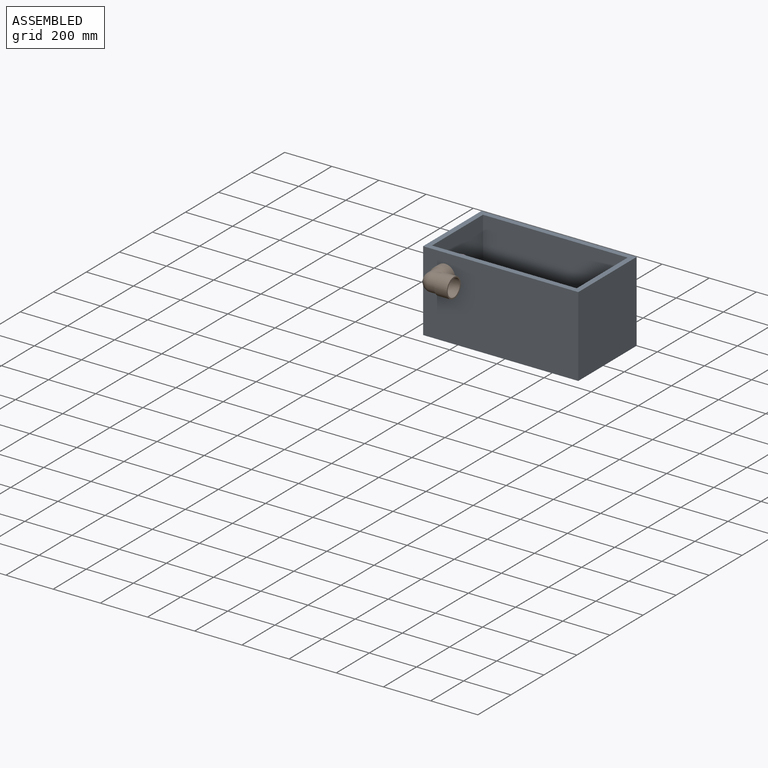
[diagram: assembled view]
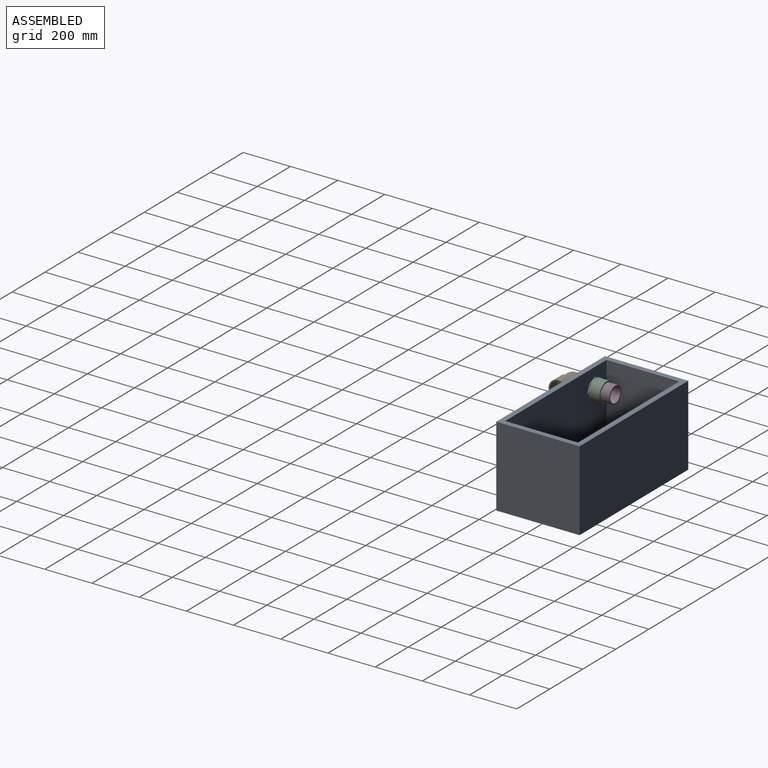
[diagram: assembled view, second angle]
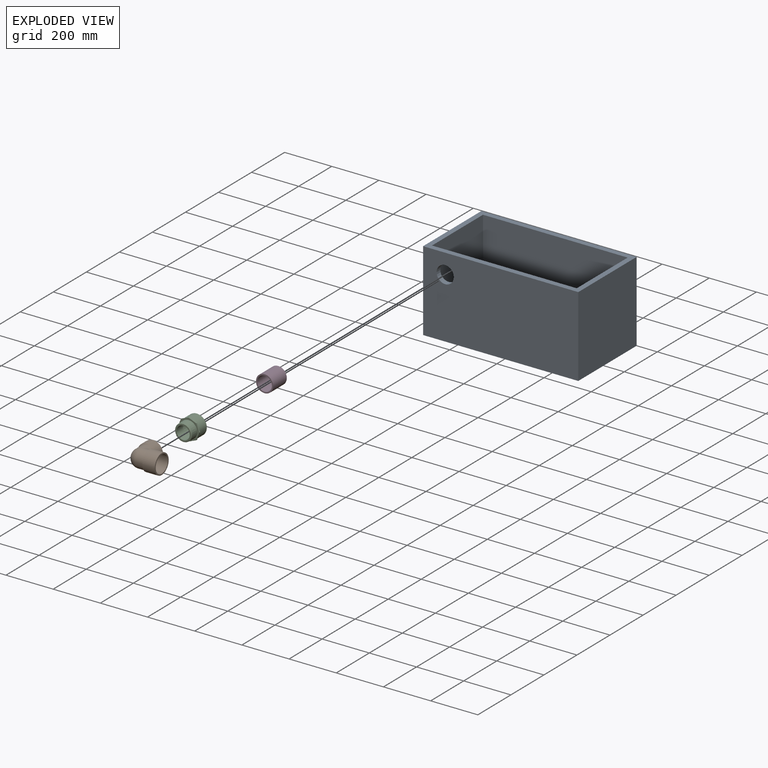
[diagram: exploded view]
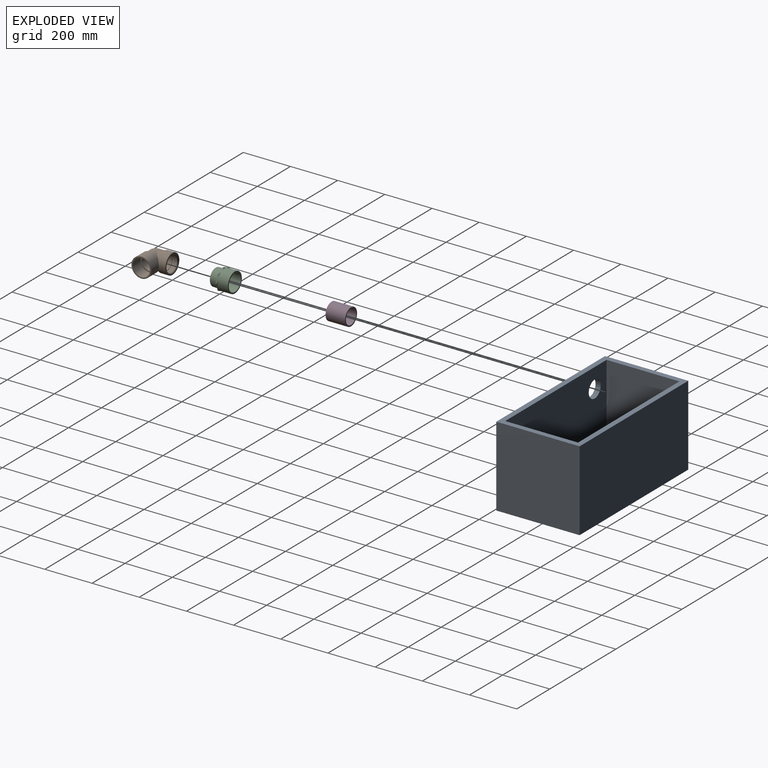
[diagram: exploded view, second angle]
ASSEMBLY  parts=4 mates=3
PART A: 12 faces, bbox 657.9x353.1x340.4 mm
  f0: plane 613.41x318.14mm, normal (0,1,0), area 190958.9mm2, adj f1,f3,f4,f5,f11
  f1: plane 318.14x308.61mm, normal (-1,0,0), area 98179.6mm2, adj f0,f2,f4,f5
  f2: plane 613.41x318.14mm, normal (0,-1,0), area 195147.2mm2, adj f1,f3,f4,f5
  f3: plane 318.14x308.61mm, normal (1,0,0), area 98179.6mm2, adj f0,f2,f4,f5
  f4: plane 613.41x308.61mm, normal (0,0,1), area 189304.5mm2, adj f0,f1,f2,f3
  f5: plane 657.86x353.06mm, normal (0,0,1), area 42959.6mm2, adj f0,f1,f2,f3,f7,f8,f9,f10
  f6: plane 657.86x353.06mm, normal (0,0,-1), area 232264.1mm2, adj f7,f8,f9,f10
  f7: plane 353.06x340.36mm, normal (-1,0,0), area 120167.5mm2, adj f5,f6,f8,f10
  f8: plane 657.86x340.36mm, normal (0,1,0), area 223909.2mm2, adj f5,f6,f7,f9
  f9: plane 353.06x340.36mm, normal (1,0,0), area 120167.5mm2, adj f5,f6,f8,f10
  f10: plane 657.86x340.36mm, normal (0,-1,0), area 219721mm2, adj f5,f6,f7,f9,f11
  f11: cylinder r=36.51mm len=73.03mm, axis (0,-1,0), area 5098.7mm2, adj f0,f10
PART B: 17 faces, bbox 113.2x128.4x84.1 mm
  f0: plane 66.14x66.14mm, normal (1,0,0), area 320.2mm2, adj f1,f3
  f1: cylinder r=31.49mm len=62.99mm, axis (1,0,0), area 7405.2mm2, adj f0,f2,f4
  f2: sphere r=31.49mm, area 3115.9mm2, adj f1,f4
  f3: cone r=33.44mm half-angle=1.8deg, axis (1,0,0), area 4419.9mm2, adj f0,f5
  f4: cylinder r=31.49mm len=62.99mm, axis (0,-1,0), area 5555.6mm2, adj f1,f2,f7
  f5: cone r=18.17mm half-angle=45deg, axis (1,0,0), area 816.2mm2, adj f3,f8
  f6: sphere r=37.84mm, area 4499.3mm2, adj f9,f10
  f7: plane 73.38x73.38mm, normal (0,-1,0), area 1113.1mm2, adj f4,f11
  f8: plane 84.1x84.1mm, normal (1,0,0), area 1404mm2, adj f5,f12
  f9: cylinder r=37.84mm len=75.69mm, axis (1,0,0), area 4967.6mm2, adj f6,f10,f13
  f10: cylinder r=37.84mm len=75.69mm, axis (0,-1,0), area 5160.7mm2, adj f6,f9,f13,f14
  f11: cylinder r=36.69mm len=73.38mm, axis (0,-1,0), area 11125.5mm2, adj f7,f15
  f12: cylinder r=42.05mm len=84.1mm, axis (1,0,0), area 8985.9mm2, adj f8,f13,f16
  f13: cone r=39.95mm half-angle=45deg, axis (1,0,0), area 1225.5mm2, adj f9,f10,f12,f14,f16
  f14: plane 84.1x77.09mm, normal (0,1,0), area 868mm2, adj f10,f13,f16
  f15: plane 84.1x84.1mm, normal (0,-1,0), area 1325.7mm2, adj f11,f16
  f16: cylinder r=42.05mm len=84.1mm, axis (0,-1,0), area 13714.5mm2, adj f12,f13,f14,f15
PART C: 26 faces, bbox 82.9x91.6x91.6 mm
  f0: plane 91.61x91.61mm, normal (-1,0,0), area 1745.5mm2, adj f1,f2,f3,f4,f5,f6,f7,f8
  f1: cylinder r=36.51mm len=73.03mm, axis (1,0,0), area 929.4mm2, adj f0,f10
  f2: plane 32.39x13.42mm, normal (0,0.38,0.92), area 167.4mm2, adj f0,f3,f8,f11,f12
  f3: plane 32.39x13.42mm, normal (0,-0.38,0.92), area 167.4mm2, adj f0,f2,f4,f12,f13
  f4: plane 32.39x13.42mm, normal (0,-0.92,0.38), area 167.4mm2, adj f0,f3,f5,f13,f14
  f5: plane 32.39x13.42mm, normal (0,-0.92,-0.38), area 167.4mm2, adj f0,f4,f6,f14,f15
  f6: plane 32.39x13.42mm, normal (0,-0.38,-0.92), area 167.4mm2, adj f0,f5,f7,f15,f16
  f7: plane 32.39x13.42mm, normal (0,0.38,-0.92), area 167.4mm2, adj f0,f6,f9,f16,f17
  f8: plane 32.39x13.42mm, normal (0,0.92,0.38), area 167.4mm2, adj f0,f2,f9,f11,f18
  f9: plane 32.39x13.42mm, normal (0,0.92,-0.38), area 167.4mm2, adj f0,f7,f8,f17,f18
  f10: cone r=36.06mm half-angle=1.8deg, axis (1,0,0), area 6007.4mm2, adj f1,f19
  f11: plane 22.9x22.9mm, normal (1,0,0), area 38.5mm2, adj f2,f8,f20
  f12: plane 32.39x6.71mm, normal (1,0,0), area 38.5mm2, adj f2,f3,f20
  f13: plane 22.9x22.9mm, normal (1,0,0), area 38.5mm2, adj f3,f4,f20
  f14: plane 32.39x6.71mm, normal (1,0,0), area 38.5mm2, adj f4,f5,f20
  f15: plane 22.9x22.9mm, normal (1,0,0), area 38.5mm2, adj f5,f6,f20
  f16: plane 32.39x6.71mm, normal (1,0,0), area 38.5mm2, adj f6,f7,f20
  f17: plane 22.9x22.9mm, normal (1,0,0), area 38.5mm2, adj f7,f9,f20
  f18: plane 32.39x6.71mm, normal (1,0,0), area 38.5mm2, adj f8,f9,f20
  f19: cone r=34.89mm half-angle=45deg, axis (1,0,0), area 741.6mm2, adj f10,f21
  f20: cylinder r=42.32mm len=84.63mm, axis (-1,0,0), area 12021mm2, adj f11,f12,f13,f14,f15,f16,f17,f18
  f21: plane 66.54x66.54mm, normal (-1,0,0), area 1057.8mm2, adj f19,f23
  f22: plane 84.63x84.63mm, normal (1,0,0), area 1396.4mm2, adj f20,f24
  f23: cylinder r=27.75mm len=55.5mm, axis (-1,0,0), area 6576.5mm2, adj f21,f25
  f24: cone r=36.56mm half-angle=0.3deg, axis (1,0,0), area 10385.1mm2, adj f22,f25
  f25: plane 72.85x72.85mm, normal (1,0,0), area 1748.7mm2, adj f23,f24
PART D: 4 faces, bbox 73x82.6x73 mm
  f0: cylinder r=31.05mm len=82.55mm, axis (0,1,0), area 16105.7mm2, adj f2,f3
  f1: cylinder r=36.51mm len=82.55mm, axis (0,1,0), area 18938.2mm2, adj f2,f3
  f2: plane 73.03x73.03mm, normal (0,-1,0), area 1159.1mm2, adj f0,f1
  f3: plane 73.03x73.03mm, normal (0,1,0), area 1159.1mm2, adj f0,f1
PLACE A at identity
PLACE B rot(axis=(0,0,1),90deg) t=(-235.27,-176.53,256.22)mm
PLACE C rot(axis=(0,0,1),90deg) t=(-235.27,-187.25,256.22)mm
PLACE D t=(-235.27,-66.98,256.22)mm
MATE fastened C.f20 <-> D.f1  axis (0,1,0) through (-235.27,-149.53,256.22)mm
MATE fastened C.f20 <-> A.f11  axis (0,-1,0) through (-235.27,-154.31,256.22)mm
MATE fastened A.f11 <-> B.f3  axis (0,-1,0) through (-235.27,-176.53,256.22)mm
